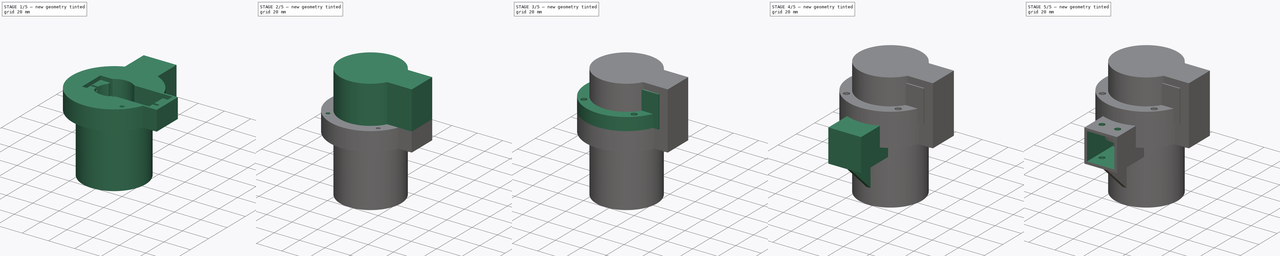
[diagram: build sequence overview — one tinted view per stage of 5, left to right]
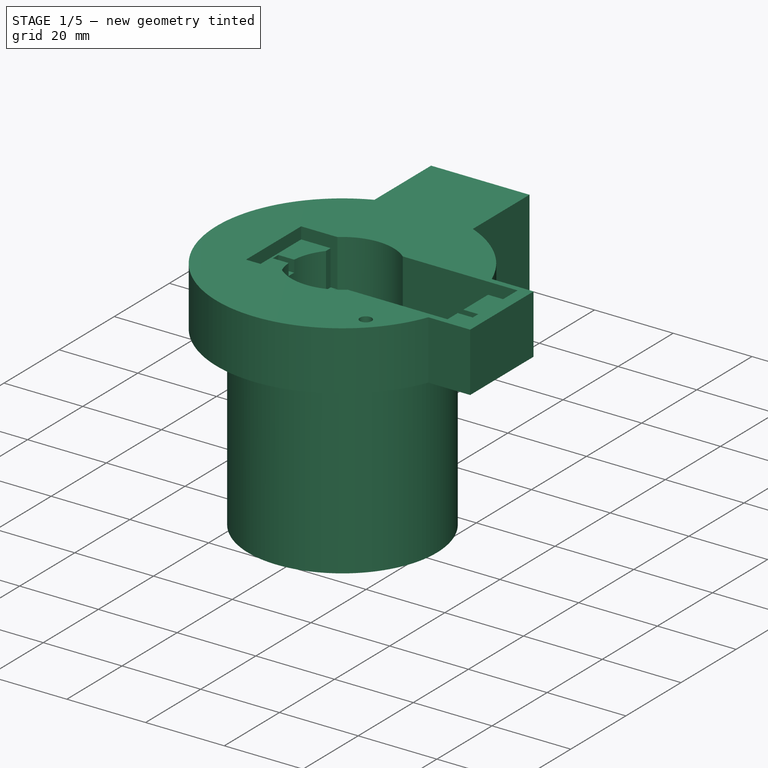
[diagram: stage 1 of 5 — iso view after this stage's code; geometry added in this stage tinted green]
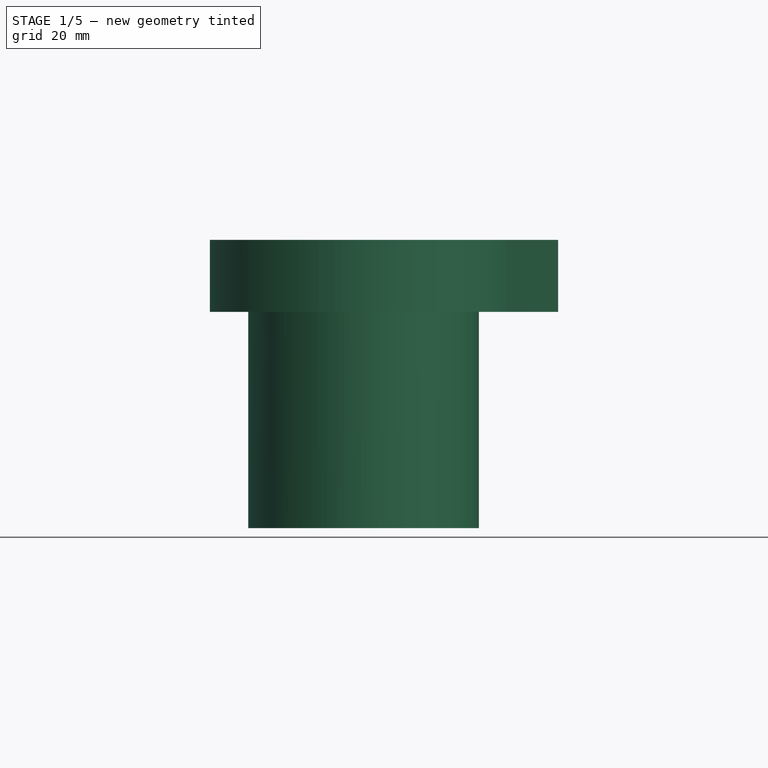
[diagram: stage 1 of 5 — front view after this stage's code; geometry added in this stage tinted green]
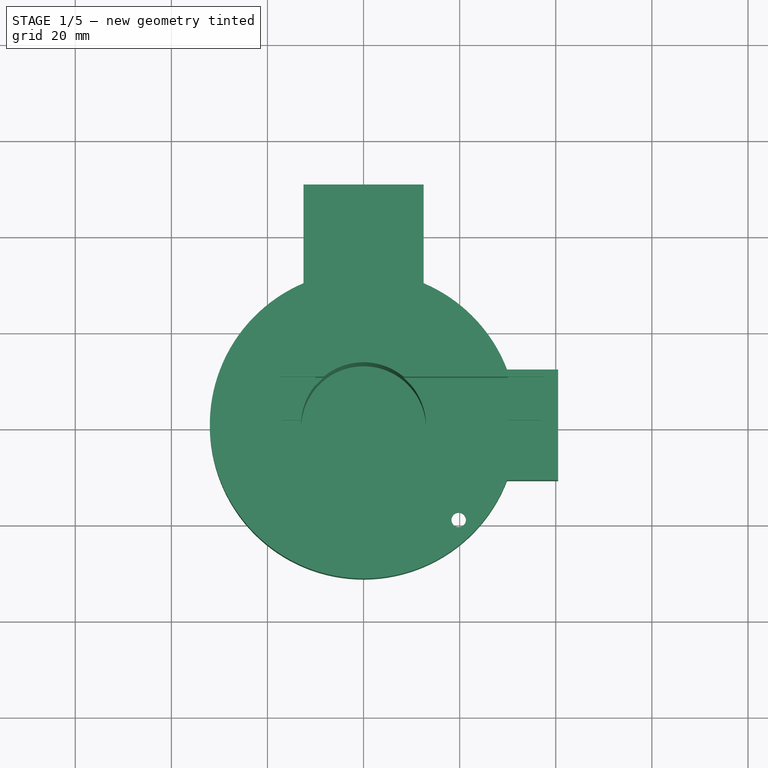
[diagram: stage 1 of 5 — top view after this stage's code; geometry added in this stage tinted green]
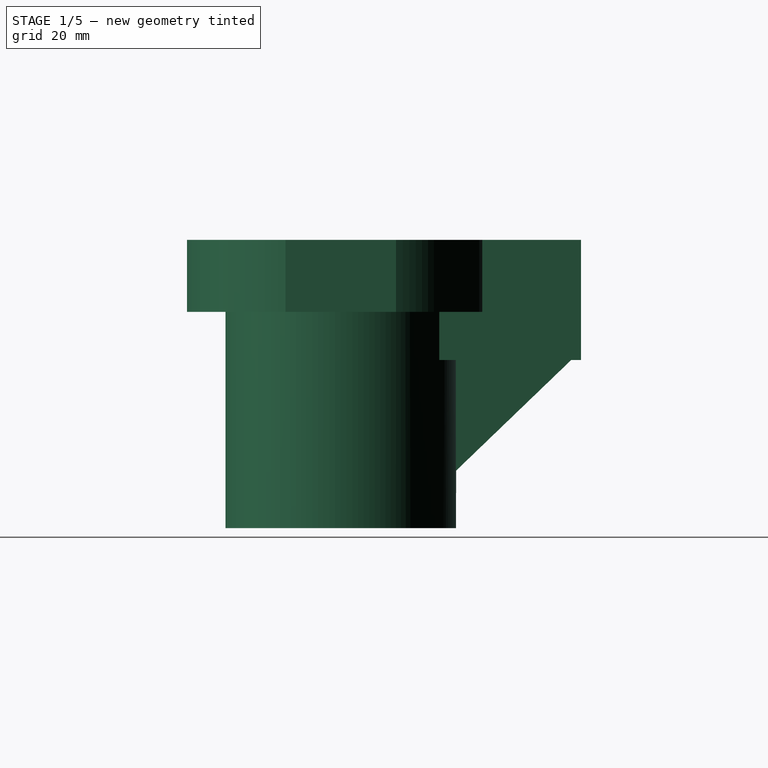
[diagram: stage 1 of 5 — right view after this stage's code; geometry added in this stage tinted green]
FCSTD DOCUMENT  (FreeCAD 0.19R24367 (Git))
Label: SteeringKnuckle
License: All rights reserved
LicenseURL: http://en.wikipedia.org/wiki/All_rights_reserved
objects: Sketcher::SketchObject×47, PartDesign::Pocket×30, PartDesign::Pad×15, PartDesign::CoordinateSystem×13, PartDesign::Body×4, App::Part×4, PartDesign::PolarPattern×3, PartDesign::Hole×2
note: 161 computed .brp shape members not serialized (recipe doc carries the construction recipe); baked Part::Feature solids carry a one-line shape summary decoded from their .brp

FEATURE [Sketcher::SketchObject] Sketch
  FullyConstrained = true
  MapMode = 5
  Support = -> [XY_Plane]
  sketch-geometry (4):
    g0: LineSegment StartX=-20.5 StartY=11.5 StartZ=0 EndX=40.5 EndY=11.5 EndZ=0
    g1: LineSegment StartX=40.5 StartY=11.5 StartZ=0 EndX=40.5 EndY=-11.5 EndZ=0
    g2: LineSegment StartX=40.5 StartY=-11.5 StartZ=0 EndX=-20.5 EndY=-11.5 EndZ=0
    g3: LineSegment StartX=-20.5 StartY=-11.5 StartZ=0 EndX=-20.5 EndY=11.5 EndZ=0
  constraints (11):
    c: Coincident(g0,g1)
    c: Coincident(g1,g2)
    c: Coincident(g2,g3)
    c: Coincident(g3,g0)
    c: Horizontal(g0)
    c: Horizontal(g2)
    c: Vertical(g1)
    c: Distance(g0) = 61
    c: Distance(g1) = 23
    c: Symmetric(g0,g2,g-1)
    c: DistanceX(g0,g-1) = 20.5
FEATURE [Sketcher::SketchObject] Sketch001
  FullyConstrained = true
  MapMode = 5
  Placement = pos=(0,0,0) rot=(1,0,0;3.14159rad)
  sketch-geometry (4):
    g0: LineSegment StartX=-10.5 StartY=10.2 StartZ=0 EndX=30.5 EndY=10.2 EndZ=0
    g1: LineSegment StartX=30.5 StartY=10.2 StartZ=0 EndX=30.5 EndY=-10.2 EndZ=0
    g2: LineSegment StartX=30.5 StartY=-10.2 StartZ=0 EndX=-10.5 EndY=-10.2 EndZ=0
    g3: LineSegment StartX=-10.5 StartY=-10.2 StartZ=0 EndX=-10.5 EndY=10.2 EndZ=0
  constraints (11):
    c: Coincident(g0,g1)
    c: Coincident(g1,g2)
    c: Coincident(g2,g3)
    c: Coincident(g3,g0)
    c: Horizontal(g0)
    c: Horizontal(g2)
    c: Vertical(g1)
    c: Distance(g0) = 41
    c: Distance(g1) = 20.4
    c: Symmetric(g0,g2,g-1)
    c: DistanceX(g0,g-1) = 10.5
FEATURE [Sketcher::SketchObject] Sketch002
  FullyConstrained = false
  MapMode = 5
  Placement = pos=(0,0,0) rot=(1,0,0;3.14159rad)
  sketch-geometry (4):
    g0: LineSegment StartX=-14.5 StartY=4 StartZ=0 EndX=-10.5 EndY=4 EndZ=0
    g1: LineSegment StartX=-10.5 StartY=4 StartZ=0 EndX=-10.5 EndY=-4 EndZ=0
    g2: LineSegment StartX=-10.5 StartY=-4 StartZ=0 EndX=-14.5 EndY=-4 EndZ=0
    g3: LineSegment StartX=-14.5 StartY=-4 StartZ=0 EndX=-14.5 EndY=4 EndZ=0
  constraints (10):
    c: Coincident(g0,g1)
    c: Coincident(g1,g2)
    c: Coincident(g2,g3)
    c: Coincident(g3,g0)
    c: Horizontal(g0)
    c: Horizontal(g2)
    c: Vertical(g1)
    c: Distance(g0) = 4
    c: Distance(g3) = 8
    c: Symmetric(g0,g2,g-1)
FEATURE [Sketcher::SketchObject] Sketch004
  FullyConstrained = true
  MapMode = 5
  Support = -> [XY_Plane001]
  sketch-geometry (4):
    g0: LineSegment StartX=-20.5 StartY=11.5 StartZ=0 EndX=40.5 EndY=11.5 EndZ=0
    g1: LineSegment StartX=40.5 StartY=11.5 StartZ=0 EndX=40.5 EndY=-11.5 EndZ=0
    g2: LineSegment StartX=40.5 StartY=-11.5 StartZ=0 EndX=-20.5 EndY=-11.5 EndZ=0
    g3: LineSegment StartX=-20.5 StartY=-11.5 StartZ=0 EndX=-20.5 EndY=11.5 EndZ=0
  constraints (11):
    c: Coincident(g0,g1)
    c: Coincident(g1,g2)
    c: Coincident(g2,g3)
    c: Coincident(g3,g0)
    c: Horizontal(g0)
    c: Horizontal(g2)
    c: Vertical(g1)
    c: Distance(g0) = 61
    c: Distance(g1) = 23
    c: Symmetric(g0,g2,g-1)
    c: DistanceX(g0,g-1) = 20.5
FEATURE [Sketcher::SketchObject] Sketch005
  FullyConstrained = true
  MapMode = 5
  sketch-geometry (4):
    g0: LineSegment StartX=-17.5 StartY=10 StartZ=0 EndX=37.5 EndY=10 EndZ=0
    g1: LineSegment StartX=37.5 StartY=10 StartZ=0 EndX=37.5 EndY=-10 EndZ=0
    g2: LineSegment StartX=37.5 StartY=-10 StartZ=0 EndX=-17.5 EndY=-10 EndZ=0
    g3: LineSegment StartX=-17.5 StartY=-10 StartZ=0 EndX=-17.5 EndY=10 EndZ=0
  constraints (11):
    c: Coincident(g0,g1)
    c: Coincident(g1,g2)
    c: Coincident(g2,g3)
    c: Coincident(g3,g0)
    c: Horizontal(g0)
    c: Horizontal(g2)
    c: Vertical(g1)
    c: Distance(g1) = 20
    c: Distance(g0) = 55
    c: Symmetric(g0,g2,g-1)
    c: DistanceX(g0,g-1) = 17.5
FEATURE [Sketcher::SketchObject] Sketch006
  FullyConstrained = true
  MapMode = 5
  Placement = pos=(0,0,-3) rot=(0,0,1;0rad)
  sketch-geometry (4):
    g0: LineSegment StartX=-10 StartY=10 StartZ=0 EndX=30 EndY=10 EndZ=0
    g1: LineSegment StartX=30 StartY=10 StartZ=0 EndX=30 EndY=-10 EndZ=0
    g2: LineSegment StartX=30 StartY=-10 StartZ=0 EndX=-10 EndY=-10 EndZ=0
    g3: LineSegment StartX=-10 StartY=-10 StartZ=0 EndX=-10 EndY=10 EndZ=0
  constraints (11):
    c: Coincident(g0,g1)
    c: Coincident(g1,g2)
    c: Coincident(g2,g3)
    c: Coincident(g3,g0)
    c: Horizontal(g0)
    c: Horizontal(g2)
    c: Vertical(g1)
    c: Distance(g1) = 20
    c: Distance(g0) = 40
    c: Symmetric(g0,g2,g-1)
    c: DistanceX(g0,g-1) = 10
FEATURE [Sketcher::SketchObject] Sketch008
  FullyConstrained = true
  MapMode = 5
  Placement = pos=(0,0,-3) rot=(0,0,1;0rad)
  sketch-geometry (8):
    g0: LineSegment StartX=-17 StartY=1 StartZ=0 EndX=-10 EndY=1 EndZ=0
    g1: LineSegment StartX=-10 StartY=1 StartZ=0 EndX=-10 EndY=-1 EndZ=0
    g2: LineSegment StartX=-10 StartY=-1 StartZ=0 EndX=-17 EndY=-1 EndZ=0
    g3: LineSegment StartX=-17 StartY=-1 StartZ=0 EndX=-17 EndY=1 EndZ=0
    g4: LineSegment StartX=30 StartY=1 StartZ=0 EndX=37 EndY=1 EndZ=0
    g5: LineSegment StartX=37 StartY=1 StartZ=0 EndX=37 EndY=-1 EndZ=0
    g6: LineSegment StartX=37 StartY=-1 StartZ=0 EndX=30 EndY=-1 EndZ=0
    g7: LineSegment StartX=30 StartY=-1 StartZ=0 EndX=30 EndY=1 EndZ=0
  constraints (22):
    c: Coincident(g0,g1)
    c: Coincident(g1,g2)
    c: Coincident(g2,g3)
    c: Coincident(g3,g0)
    c: Horizontal(g0)
    c: Horizontal(g2)
    c: Vertical(g1)
    c: Distance(g1) = 2
    c: Distance(g0) = 7
    c: Symmetric(g0,g2,g-1)
    c: DistanceX(g0,g-1) = 10
    c: Coincident(g4,g5)
    c: Coincident(g5,g6)
    c: Coincident(g6,g7)
    c: Coincident(g7,g4)
    c: Horizontal(g4)
    c: Horizontal(g6)
    c: Vertical(g7)
    c: Distance(g7) = 2
    c: Distance(g4) = 7
    c: Symmetric(g4,g5,g-1)
    c: DistanceX(g-1,g4) = 30
FEATURE [Sketcher::SketchObject] Sketch009
  FullyConstrained = true
  MapMode = 5
  sketch-geometry (1):
    g0: Circle CenterX=0 CenterY=0 CenterZ=0 NormalX=0 NormalY=0 NormalZ=1 AngleXU=0 Radius=24
  constraints (2):
    c: Coincident(g0,g-1)
    c: Diameter(g0) = 48
FEATURE [PartDesign::Pad] Pad002
  Direction = (1,1,1)
  Length = 60
  Length2 = 100
  Profile = -> Sketch009
  Reversed = true
  Type = 0
FEATURE [PartDesign::Pad] Pad003
  BaseFeature = -> Pad002
  Direction = (1,1,1)
  Length = 15
  Length2 = 100
  Profile = -> Sketch004
  Reversed = true
  Type = 0
FEATURE [Sketcher::SketchObject] Sketch036
  FullyConstrained = true
  MapMode = 5
  sketch-geometry (4):
    g0: LineSegment StartX=-12.5 StartY=50 StartZ=0 EndX=12.5 EndY=50 EndZ=0
    g1: LineSegment StartX=12.5 StartY=50 StartZ=0 EndX=12.5 EndY=10 EndZ=0
    g2: LineSegment StartX=12.5 StartY=10 StartZ=0 EndX=-12.5 EndY=10 EndZ=0
    g3: LineSegment StartX=-12.5 StartY=10 StartZ=0 EndX=-12.5 EndY=50 EndZ=0
  constraints (11):
    c: Coincident(g0,g1)
    c: Coincident(g1,g2)
    c: Coincident(g2,g3)
    c: Coincident(g3,g0)
    c: Horizontal(g0)
    c: Vertical(g1)
    c: Vertical(g3)
    c: Distance(g0) = 25
    c: Distance(g1) = 40
    c: Symmetric(g2,g1,g-2)
    c: DistanceY(g-1,g2) = 10
FEATURE [PartDesign::Pad] Pad015
  BaseFeature = -> Pad003
  Direction = (1,1,1)
  Length = 25
  Length2 = 100
  Profile = -> Sketch036
  Reversed = true
  Type = 0
FEATURE [Sketcher::SketchObject] Sketch038
  FullyConstrained = true
  MapMode = 5
  sketch-geometry (1):
    g0: Circle CenterX=0 CenterY=0 CenterZ=0 NormalX=0 NormalY=0 NormalZ=1 AngleXU=0 Radius=13
  constraints (2):
    c: Coincident(g0,g-1)
    c: Diameter(g0) = 26
FEATURE [Sketcher::SketchObject] Sketch043
  FullyConstrained = true
  MapMode = 5
  Placement = pos=(0,0,0) rot=(0.57735,0.57735,0.57735;2.0944rad)
  Support = -> [YZ_Plane001]
  sketch-geometry (3):
    g0: LineSegment StartX=23 StartY=-24 StartZ=0 EndX=49 EndY=-24 EndZ=0
    g1: LineSegment StartX=23 StartY=-24 StartZ=0 EndX=23 EndY=-49 EndZ=0
    g2: LineSegment StartX=49 StartY=-24 StartZ=0 EndX=23 EndY=-49 EndZ=0
  constraints (9):
    c: Horizontal(g0)
    c: Coincident(g1,g0)
    c: Vertical(g1)
    c: Coincident(g2,g0)
    c: Coincident(g2,g1)
    c: Distance(g0) = 26
    c: Distance(g1) = 25
    c: DistanceX(g0) = 23
    c: DistanceY(g0) = -24
FEATURE [PartDesign::Pad] Pad016
  BaseFeature = -> Pad015
  Direction = (1,1,1)
  Length = 3
  Length2 = 100
  Midplane = true
  Profile = -> Sketch043
  Type = 0
FEATURE [Sketcher::SketchObject] Sketch047
  FullyConstrained = true
  MapMode = 5
  Support = -> [XY_Plane001]
  sketch-geometry (1):
    g0: Circle CenterX=0 CenterY=0 CenterZ=0 NormalX=0 NormalY=0 NormalZ=1 AngleXU=0 Radius=32
  constraints (2):
    c: Coincident(g0,g-1)
    c: Diameter(g0) = 64
FEATURE [PartDesign::Pad] Pad017
  BaseFeature = -> Pad016
  Direction = (1,1,1)
  Length = 15
  Length2 = 100
  Profile = -> Sketch047
  Reversed = true
  Type = 0
FEATURE [PartDesign::Pocket] Pocket030
  BaseFeature = -> Pad017
  Length = 3
  Length2 = 100
  Profile = -> Sketch005
  Type = 0
FEATURE [PartDesign::Pocket] Pocket031
  BaseFeature = -> Pocket030
  Length = 3
  Length2 = 100
  Profile = -> Sketch008
  Type = 0
FEATURE [PartDesign::Pocket] Pocket032
  BaseFeature = -> Pocket031
  Length = 48
  Length2 = 100
  Profile = -> Sketch038
  Type = 0
FEATURE [PartDesign::Pocket] Pocket033
  BaseFeature = -> Pocket032
  Length = 9
  Length2 = 100
  Profile = -> Sketch006
  Type = 0
FEATURE [Sketcher::SketchObject] Sketch053
  FullyConstrained = true
  MapMode = 5
  Placement = pos=(0,0,-15) rot=(1,0,0;3.14159rad)
  sketch-geometry (2):
    g0: LineSegment StartX=0 StartY=0 StartZ=0 EndX=19.799 EndY=19.799 EndZ=0
    g1: Circle CenterX=19.799 CenterY=19.799 CenterZ=0 NormalX=0 NormalY=0 NormalZ=1 AngleXU=0 Radius=3
  constraints (5):
    c: Coincident(g0,g-1)
    c: Distance(g0) = 28
    c: Angle(g-1,g0) = 0.785398
    c: Coincident(g1,g0)
    c: Diameter(g1) = 6
FEATURE [PartDesign::Hole] Hole
  BaseFeature = -> Pocket033
  Depth = 25
  DepthType = 0
  Diameter = 3
  DrillForDepth = false
  DrillPoint = 1
  DrillPointAngle = 118
  HoleCutCountersinkAngle = 90
  HoleCutCustomValues = false
  HoleCutDepth = 12
  HoleCutDiameter = 6
  HoleCutType = 1
  ModelActualThread = false
  Profile = -> Sketch053
  Tapered = false
  TaperedAngle = 90
  ThreadAngle = 0
  ThreadClass = 0
  ThreadCutOffInner = 0
  ThreadCutOffOuter = 0
  ThreadDirection = 0
  ThreadFit = 0
  ThreadPitch = 0
  ThreadSize = 0
  ThreadType = 0
  Threaded = false
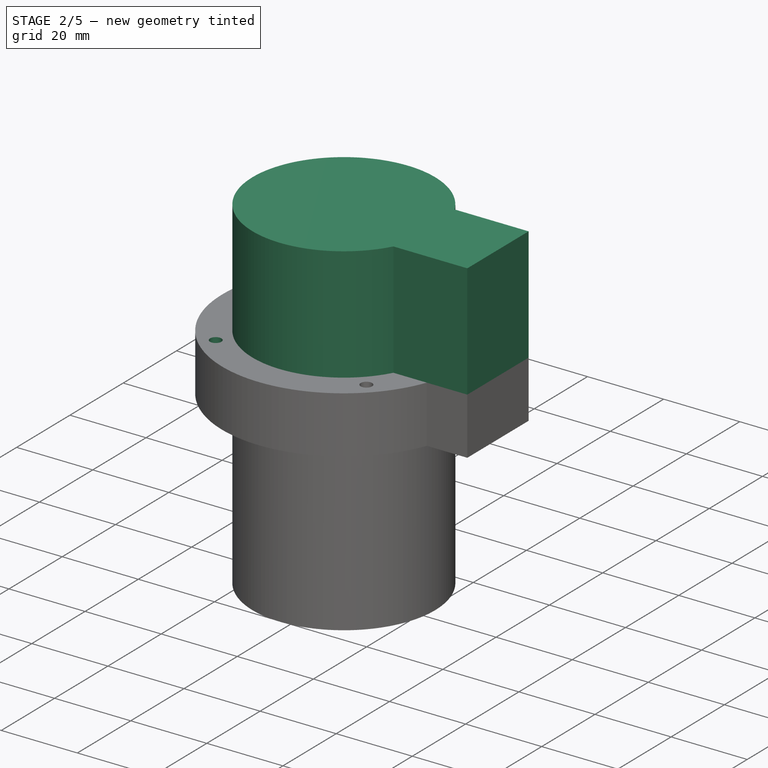
[diagram: stage 2 of 5 — iso view after this stage's code; geometry added in this stage tinted green]
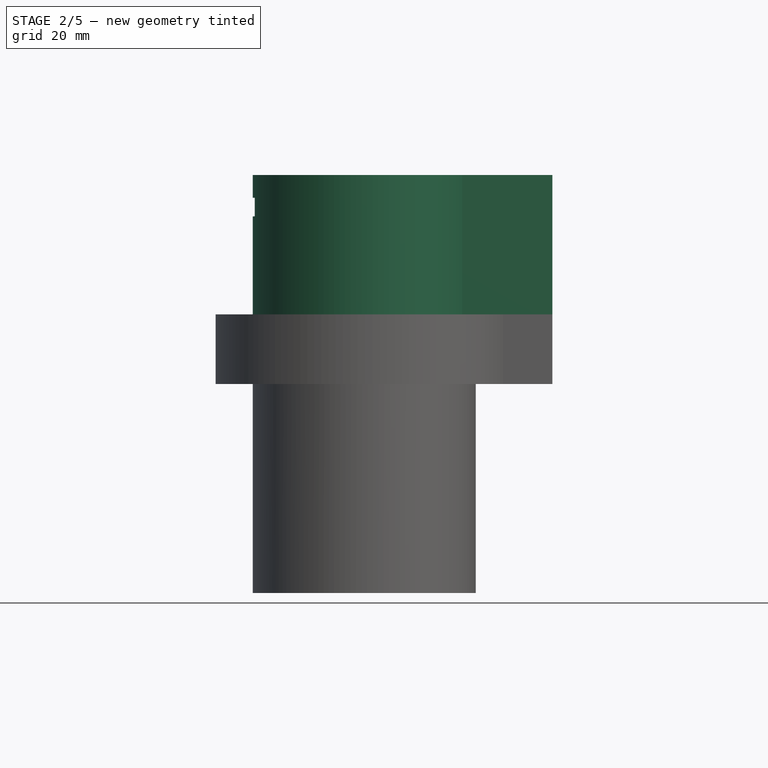
[diagram: stage 2 of 5 — front view after this stage's code; geometry added in this stage tinted green]
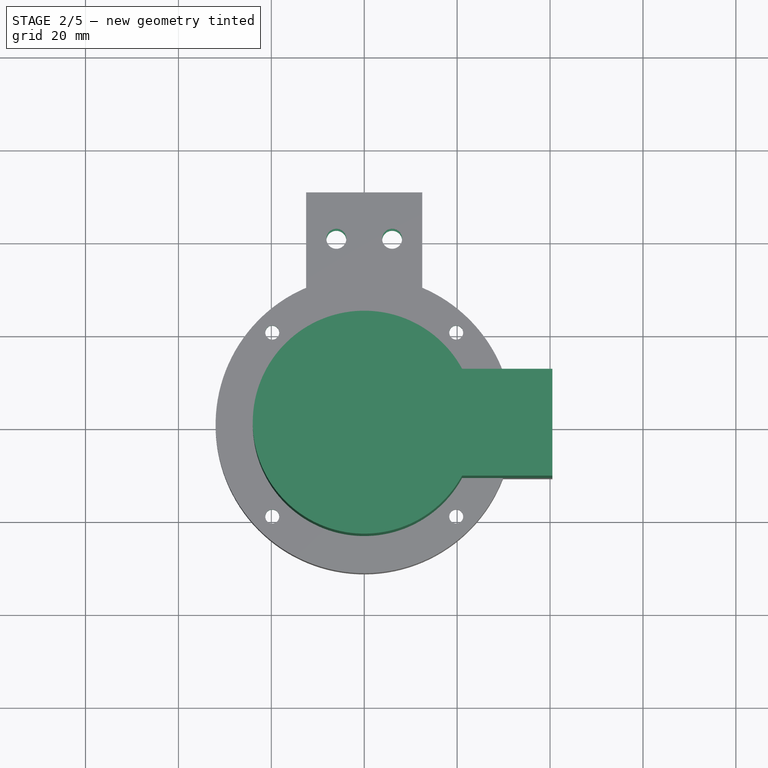
[diagram: stage 2 of 5 — top view after this stage's code; geometry added in this stage tinted green]
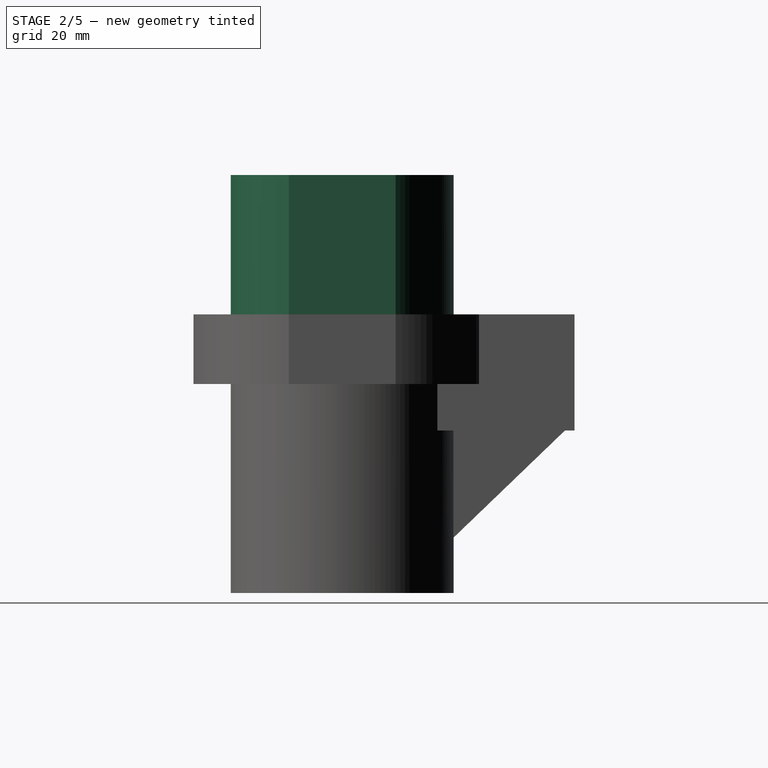
[diagram: stage 2 of 5 — right view after this stage's code; geometry added in this stage tinted green]
FEATURE [Sketcher::SketchObject] Sketch015
  FullyConstrained = true
  MapMode = 5
  Placement = pos=(0,0,0) rot=(1,0,0;3.14159rad)
  sketch-geometry (1):
    g0: Circle CenterX=0 CenterY=0 CenterZ=0 NormalX=0 NormalY=0 NormalZ=1 AngleXU=0 Radius=24
  constraints (2):
    c: Coincident(g0,g-1)
    c: Diameter(g0) = 48
FEATURE [PartDesign::Pad] Pad
  Direction = (1,1,1)
  Length = 30
  Length2 = 100
  Profile = -> Sketch
  Refine = true
  Type = 0
FEATURE [PartDesign::Pad] Pad006
  BaseFeature = -> Pad
  Direction = (1,1,1)
  Length = 30
  Length2 = 100
  Profile = -> Sketch015
  Reversed = true
  Type = 0
FEATURE [Sketcher::SketchObject] Sketch031
  FullyConstrained = true
  MapMode = 5
  Placement = pos=(40,0,0) rot=(0.57735,0.57735,0.57735;2.0944rad)
  sketch-geometry (4):
    g0: LineSegment StartX=-10.5 StartY=23 StartZ=0 EndX=10.5 EndY=23 EndZ=0
    g1: LineSegment StartX=10.5 StartY=23 StartZ=0 EndX=10.5 EndY=2 EndZ=0
    g2: LineSegment StartX=10.5 StartY=2 StartZ=0 EndX=-10.5 EndY=2 EndZ=0
    g3: LineSegment StartX=-10.5 StartY=2 StartZ=0 EndX=-10.5 EndY=23 EndZ=0
  constraints (11):
    c: Coincident(g0,g1)
    c: Coincident(g1,g2)
    c: Coincident(g2,g3)
    c: Coincident(g3,g0)
    c: Horizontal(g0)
    c: Vertical(g1)
    c: Vertical(g3)
    c: Distance(g0) = 21
    c: Equal(g0,g1)
    c: Symmetric(g2,g1,g-2)
    c: DistanceY(g-1,g1) = 2
FEATURE [PartDesign::Pocket] Pocket020
  BaseFeature = -> Pad006
  Length = 5
  Length2 = 100
  Profile = -> Sketch019
  Type = 1
FEATURE [PartDesign::PolarPattern] PolarPattern
  Angle = 360
  Axis = -> Z_Axis001
  BaseFeature = -> Hole
  Occurrences = 4
  Originals = -> [Hole]
FEATURE [PartDesign::Body] Body  label="BodyTop"
  Group = -> [Sketch,Sketch001,Sketch002,Sketch015,Pad,Pad006,Sketch019,Pocket020,Sketch054,Pad018,Pocket,Pocket039,Sketch055,Pocket040,PolarPattern001]
  Origin = -> Origin
  Tip = -> PolarPattern001
FEATURE [Sketcher::SketchObject] Sketch056
  FullyConstrained = true
  MapMode = 5
  Placement = pos=(0,0,-48) rot=(0,0,1;0rad)
  Support = -> [PolarPattern]
  sketch-geometry (1):
    g0: Circle CenterX=0 CenterY=0 CenterZ=0 NormalX=0 NormalY=0 NormalZ=1 AngleXU=0 Radius=9.75
  constraints (2):
    c: Coincident(g0,g-1)
    c: Diameter(g0) = 19.5
FEATURE [PartDesign::Pocket] Pocket041
  BaseFeature = -> PolarPattern
  Length = 6
  Length2 = 100
  Profile = -> Sketch056
  Type = 0
FEATURE [Sketcher::SketchObject] Sketch057
  FullyConstrained = true
  MapMode = 5
  Placement = pos=(0,0,-54) rot=(0,0,1;0rad)
  Support = -> [Pocket041]
  sketch-geometry (1):
    g0: Circle CenterX=0 CenterY=0 CenterZ=0 NormalX=0 NormalY=0 NormalZ=1 AngleXU=0 Radius=4.5
  constraints (2):
    c: Coincident(g0,g-1)
    c: Diameter(g0) = 9
FEATURE [PartDesign::Pocket] Pocket042
  BaseFeature = -> Pocket041
  Length = 5
  Length2 = 100
  Profile = -> Sketch057
  Type = 1
FEATURE [Sketcher::SketchObject] Sketch058
  FullyConstrained = true
  MapMode = 5
  Placement = pos=(0,0,-60) rot=(1,0,0;3.14159rad)
  Support = -> [Pocket042]
  sketch-geometry (1):
    g0: Circle CenterX=0 CenterY=0 CenterZ=0 NormalX=0 NormalY=0 NormalZ=1 AngleXU=0 Radius=22
  constraints (2):
    c: Coincident(g0,g-1)
    c: Diameter(g0) = 44
FEATURE [PartDesign::Pocket] Pocket043
  BaseFeature = -> Pocket042
  Length = 2
  Length2 = 100
  Profile = -> Sketch058
  Type = 0
FEATURE [Sketcher::SketchObject] Sketch059
  FullyConstrained = true
  MapMode = 5
  Placement = pos=(0,0,-58) rot=(1,0,0;3.14159rad)
  Support = -> [Pocket043]
  sketch-geometry (1):
    g0: Circle CenterX=0 CenterY=0 CenterZ=0 NormalX=0 NormalY=0 NormalZ=1 AngleXU=0 Radius=6.25
  constraints (2):
    c: Coincident(g0,g-1)
    c: Diameter(g0) = 12.5
FEATURE [PartDesign::Pocket] Pocket044
  BaseFeature = -> Pocket043
  Length = 2
  Length2 = 100
  Profile = -> Sketch059
  Type = 0
FEATURE [Sketcher::SketchObject] Sketch060
  FullyConstrained = true
  MapMode = 5
  Placement = pos=(0,50,0) rot=(0,0.707107,0.707107;3.14159rad)
  Support = -> [Pocket044]
  sketch-geometry (4):
    g0: LineSegment StartX=-10.5 StartY=-2 StartZ=0 EndX=10.5 EndY=-2 EndZ=0
    g1: LineSegment StartX=10.5 StartY=-2 StartZ=0 EndX=10.5 EndY=-23 EndZ=0
    g2: LineSegment StartX=10.5 StartY=-23 StartZ=0 EndX=-10.5 EndY=-23 EndZ=0
    g3: LineSegment StartX=-10.5 StartY=-23 StartZ=0 EndX=-10.5 EndY=-2 EndZ=0
  constraints (11):
    c: Coincident(g0,g1)
    c: Coincident(g1,g2)
    c: Coincident(g2,g3)
    c: Coincident(g3,g0)
    c: Horizontal(g0)
    c: Vertical(g1)
    c: Vertical(g3)
    c: Distance(g0) = 21
    c: Equal(g0,g1)
    c: Symmetric(g2,g1,g-2)
    c: DistanceY(g0,g-1) = 2
FEATURE [PartDesign::Pocket] Pocket045
  BaseFeature = -> Pocket044
  Length = 36
  Length2 = 100
  Profile = -> Sketch060
  Type = 0
FEATURE [Sketcher::SketchObject] Sketch065
  FullyConstrained = true
  MapMode = 5
  Support = -> [Pocket045]
  sketch-geometry (3):
    g0: LineSegment StartX=-6 StartY=40 StartZ=0 EndX=6 EndY=40 EndZ=0
    g1: Circle CenterX=-6 CenterY=40 CenterZ=0 NormalX=0 NormalY=0 NormalZ=1 AngleXU=0 Radius=2.15
    g2: Circle CenterX=6 CenterY=40 CenterZ=0 NormalX=0 NormalY=0 NormalZ=1 AngleXU=0 Radius=2.15
  constraints (7):
    c: Symmetric(g0,g0,g-2)
    c: Distance(g0) = 12
    c: DistanceY(g-1,g0) = 40
    c: Coincident(g1,g0)
    c: Coincident(g2,g0)
    c: Diameter(g1) = 4.3
    c: Diameter(g2) = 4.3
FEATURE [PartDesign::Pocket] Pocket051
  BaseFeature = -> Pocket045
  Length = 5
  Length2 = 100
  Profile = -> Sketch065
  Refine = true
  Type = 1
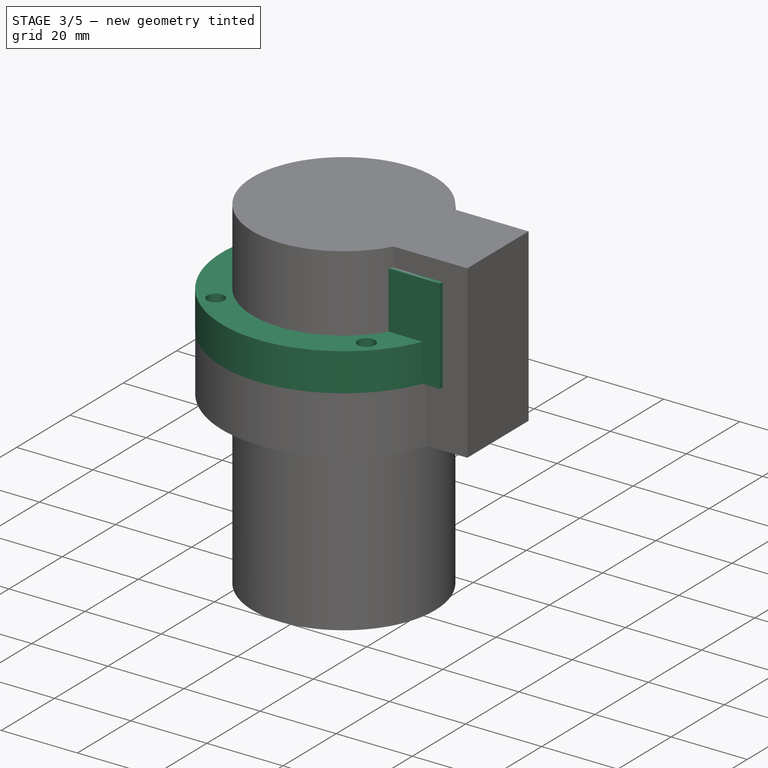
[diagram: stage 3 of 5 — iso view after this stage's code; geometry added in this stage tinted green]
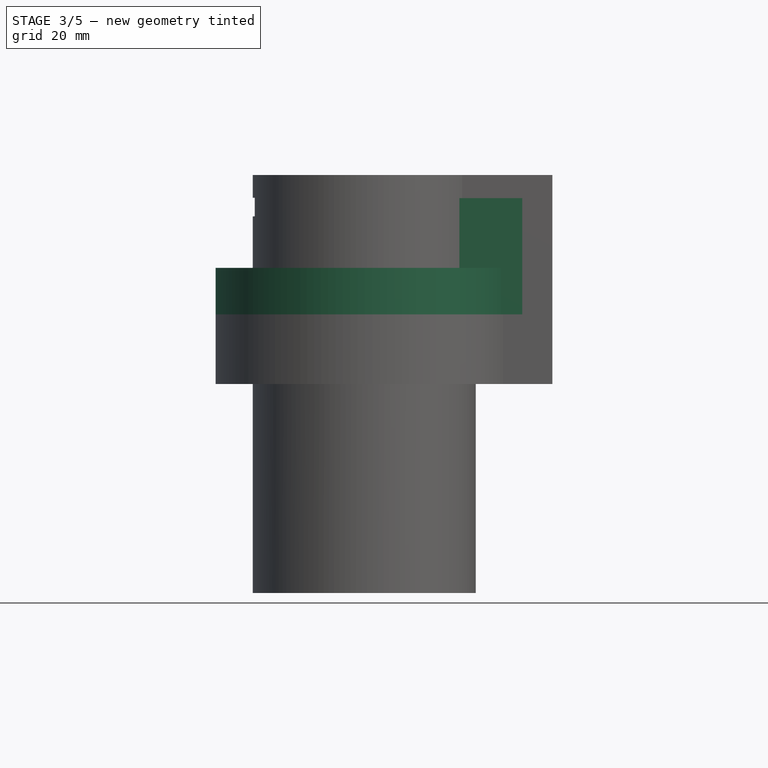
[diagram: stage 3 of 5 — front view after this stage's code; geometry added in this stage tinted green]
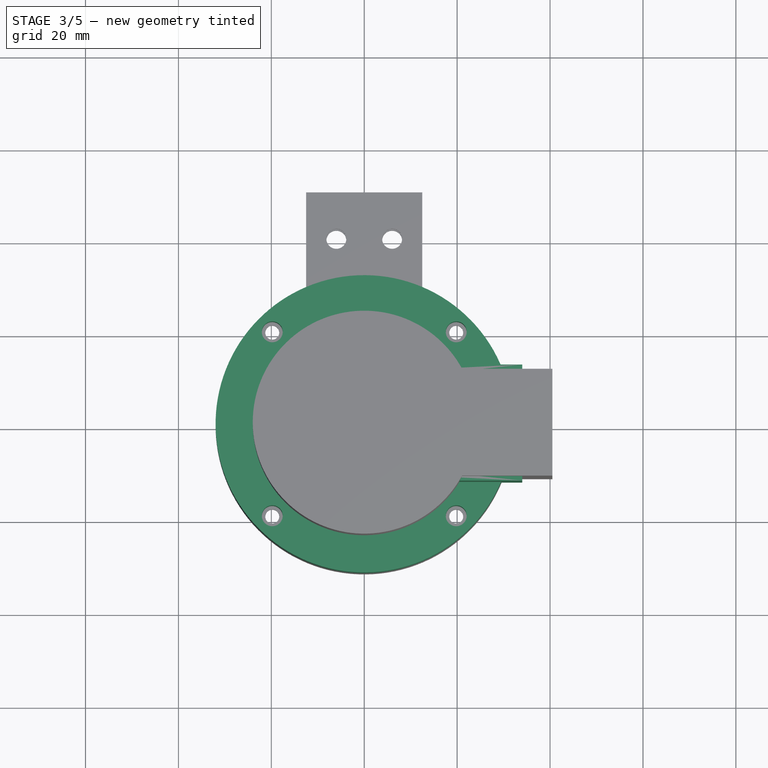
[diagram: stage 3 of 5 — top view after this stage's code; geometry added in this stage tinted green]
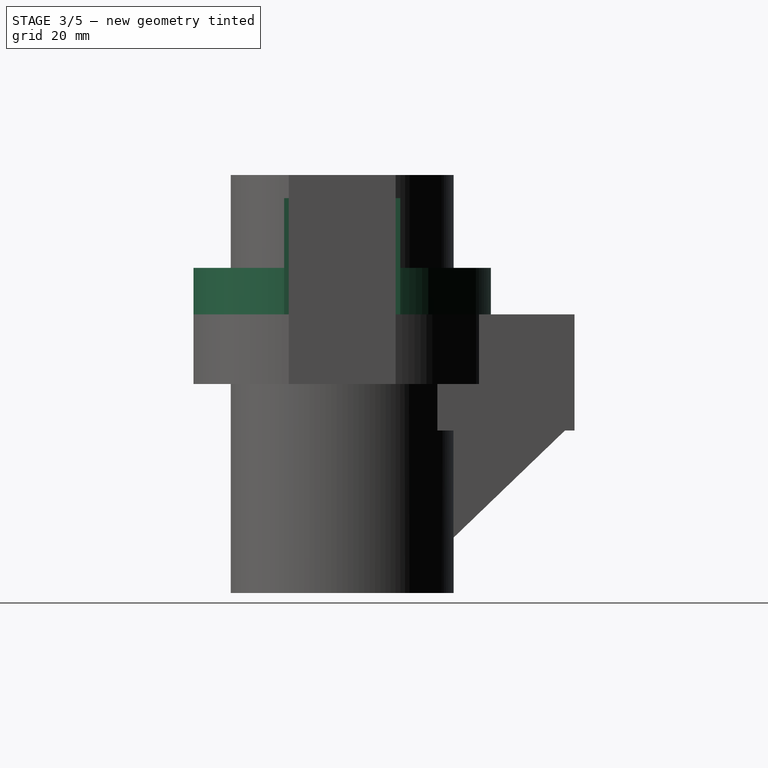
[diagram: stage 3 of 5 — right view after this stage's code; geometry added in this stage tinted green]
FEATURE [Sketcher::SketchObject] Sketch019
  FullyConstrained = true
  MapMode = 5
  Placement = pos=(0,0,0) rot=(0.57735,0.57735,0.57735;2.0944rad)
  Support = -> [YZ_Plane]
  sketch-geometry (4):
    g0: LineSegment StartX=-4.5 StartY=25.0833 StartZ=0 EndX=4.5 EndY=25.0833 EndZ=0
    g1: LineSegment StartX=4.5 StartY=25.0833 StartZ=0 EndX=4.5 EndY=21.0833 EndZ=0
    g2: LineSegment StartX=4.5 StartY=21.0833 StartZ=0 EndX=-4.5 EndY=21.0833 EndZ=0
    g3: LineSegment StartX=-4.5 StartY=21.0833 StartZ=0 EndX=-4.5 EndY=25.0833 EndZ=0
  constraints (11):
    c: Coincident(g0,g1)
    c: Coincident(g1,g2)
    c: Coincident(g2,g3)
    c: Coincident(g3,g0)
    c: Horizontal(g2)
    c: Vertical(g1)
    c: Vertical(g3)
    c: Distance(g0) = 9
    c: Symmetric(g0,g0,g-2)
    c: Distance(g1) = 4
    c: DistanceY(g2) = 21.0833
FEATURE [Sketcher::SketchObject] Sketch027
  FullyConstrained = true
  MapMode = 5
  Support = -> [XY_Plane002]
  sketch-geometry (1):
    g0: Circle CenterX=0 CenterY=0 CenterZ=0 NormalX=0 NormalY=0 NormalZ=1 AngleXU=0 Radius=21
  constraints (2):
    c: Coincident(g0,g-1)
    c: Diameter(g0) = 42
FEATURE [PartDesign::Pad] Pad011
  Direction = (1,1,1)
  Length = 30
  Length2 = 100
  Profile = -> Sketch027
  Type = 0
FEATURE [Sketcher::SketchObject] Sketch029
  FullyConstrained = true
  MapMode = 5
  Placement = pos=(0,0,0) rot=(1,0,0;3.14159rad)
  Support = -> [Pad011]
  sketch-geometry (4):
    g0: LineSegment StartX=0 StartY=12.5 StartZ=0 EndX=34 EndY=12.5 EndZ=0
    g1: LineSegment StartX=34 StartY=12.5 StartZ=0 EndX=34 EndY=-12.5 EndZ=0
    g2: LineSegment StartX=34 StartY=-12.5 StartZ=0 EndX=0 EndY=-12.5 EndZ=0
    g3: LineSegment StartX=0 StartY=-12.5 StartZ=0 EndX=0 EndY=12.5 EndZ=0
  constraints (11):
    c: Coincident(g0,g1)
    c: Coincident(g1,g2)
    c: Coincident(g2,g3)
    c: Coincident(g3,g0)
    c: Horizontal(g0)
    c: Horizontal(g2)
    c: Vertical(g1)
    c: PointOnObject(g0,g-2)
    c: Distance(g3) = 25
    c: Distance(g0) = 34
    c: Symmetric(g0,g2,g-1)
FEATURE [PartDesign::Pad] Pad012
  BaseFeature = -> Pad011
  Direction = (1,1,1)
  Length = 25
  Length2 = 100
  Profile = -> Sketch029
  Reversed = true
  Type = 0
FEATURE [Sketcher::SketchObject] Sketch054
  FullyConstrained = true
  MapMode = 5
  Support = -> [XY_Plane]
  sketch-geometry (1):
    g0: Circle CenterX=0 CenterY=0 CenterZ=0 NormalX=0 NormalY=0 NormalZ=1 AngleXU=0 Radius=32
  constraints (2):
    c: Coincident(g0,g-1)
    c: Diameter(g0) = 64
FEATURE [PartDesign::Pad] Pad018
  BaseFeature = -> Pocket020
  Direction = (1,1,1)
  Length = 10
  Length2 = 100
  Profile = -> Sketch054
  Type = 0
FEATURE [PartDesign::Pocket] Pocket
  BaseFeature = -> Pad018
  Length = 29
  Length2 = 100
  Profile = -> Sketch001
  Type = 0
FEATURE [PartDesign::Pocket] Pocket039
  BaseFeature = -> Pocket
  Length = 28
  Length2 = 100
  Profile = -> Sketch002
  Type = 0
FEATURE [Sketcher::SketchObject] Sketch055
  FullyConstrained = true
  MapMode = 5
  Placement = pos=(0,0,0) rot=(1,0,0;3.14159rad)
  Support = -> [Pocket039]
  sketch-geometry (2):
    g0: LineSegment StartX=0 StartY=0 StartZ=0 EndX=19.799 EndY=19.799 EndZ=0
    g1: Circle CenterX=19.799 CenterY=19.799 CenterZ=0 NormalX=0 NormalY=0 NormalZ=1 AngleXU=0 Radius=2.25
  constraints (5):
    c: Coincident(g0,g-1)
    c: Distance(g0) = 28
    c: Angle(g-1,g0) = 0.785398
    c: Coincident(g1,g0)
    c: Diameter(g1) = 4.5
FEATURE [PartDesign::Pocket] Pocket040
  BaseFeature = -> Pocket039
  Length = 8
  Length2 = 100
  Profile = -> Sketch055
  Refine = true
  Type = 1
FEATURE [PartDesign::PolarPattern] PolarPattern001
  Angle = 360
  Axis = -> Z_Axis
  BaseFeature = -> Pocket040
  Occurrences = 4
  Originals = -> [Pocket040]
FEATURE [Sketcher::SketchObject] Sketch061
  FullyConstrained = true
  MapMode = 5
  Placement = pos=(0,0,0) rot=(1,0,0;3.14159rad)
  Support = -> [Pad012]
  sketch-geometry (1):
    g0: Circle CenterX=0 CenterY=0 CenterZ=0 NormalX=0 NormalY=0 NormalZ=1 AngleXU=0 Radius=6.15
  constraints (2):
    c: Coincident(g0,g-1)
    c: Diameter(g0) = 12.3
FEATURE [PartDesign::Pocket] Pocket046
  BaseFeature = -> Pad012
  Length = 20
  Length2 = 100
  Profile = -> Sketch061
  Type = 0
FEATURE [Sketcher::SketchObject] Sketch062
  FullyConstrained = true
  MapMode = 5
  Placement = pos=(0,0,30) rot=(0,0,1;0rad)
  Support = -> [Pocket046]
  sketch-geometry (1):
    g0: Circle CenterX=0 CenterY=0 CenterZ=0 NormalX=0 NormalY=0 NormalZ=1 AngleXU=0 Radius=3.15
  constraints (2):
    c: Coincident(g0,g-1)
    c: Diameter(g0) = 6.3
FEATURE [PartDesign::Pocket] Pocket047
  BaseFeature = -> Pocket046
  Length = 5
  Length2 = 100
  Profile = -> Sketch062
  Type = 1
FEATURE [PartDesign::Pocket] Pocket048
  BaseFeature = -> Pocket047
  Length = 32
  Length2 = 100
  Profile = -> Sketch031
  Type = 0
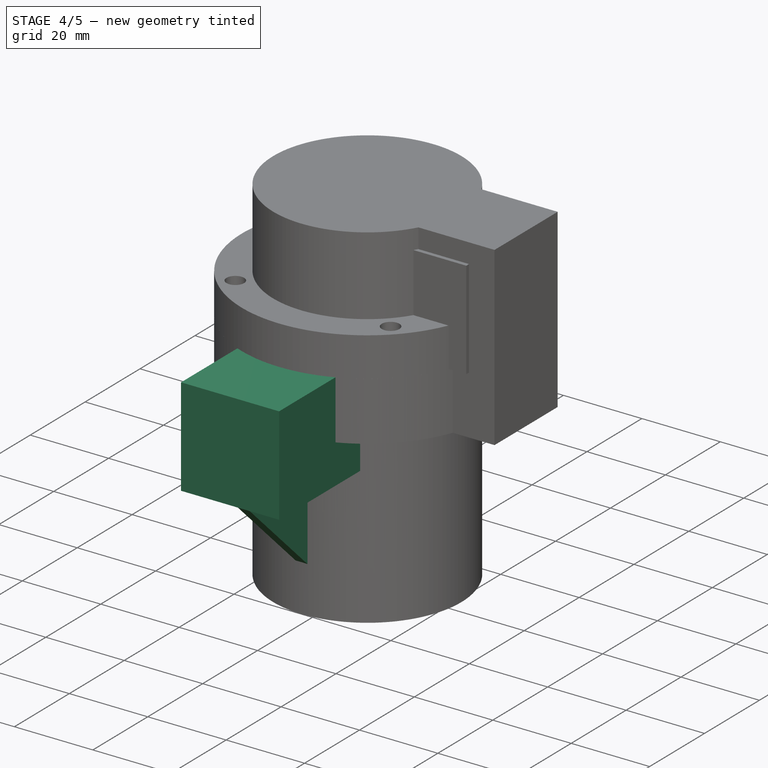
[diagram: stage 4 of 5 — iso view after this stage's code; geometry added in this stage tinted green]
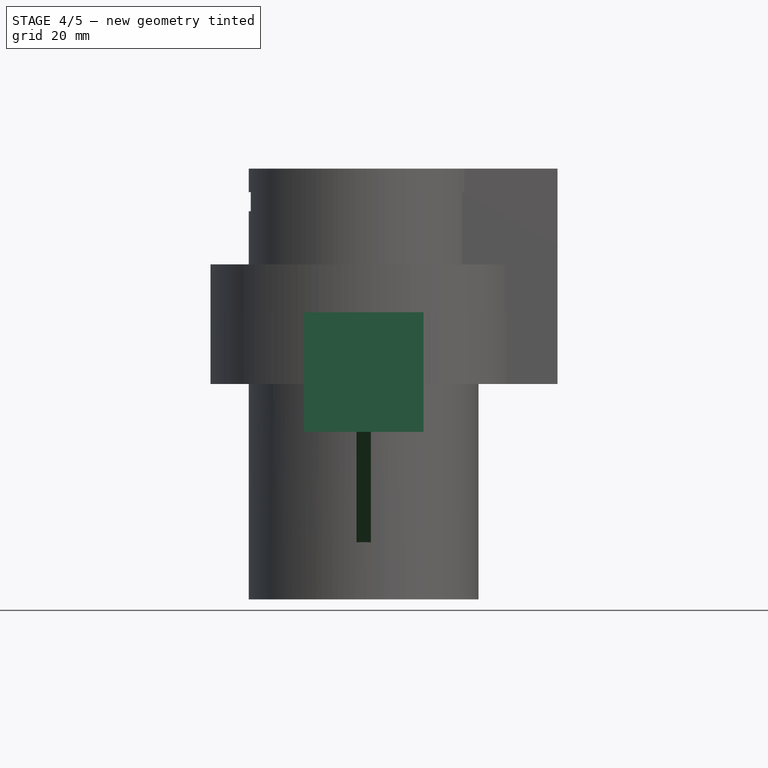
[diagram: stage 4 of 5 — front view after this stage's code; geometry added in this stage tinted green]
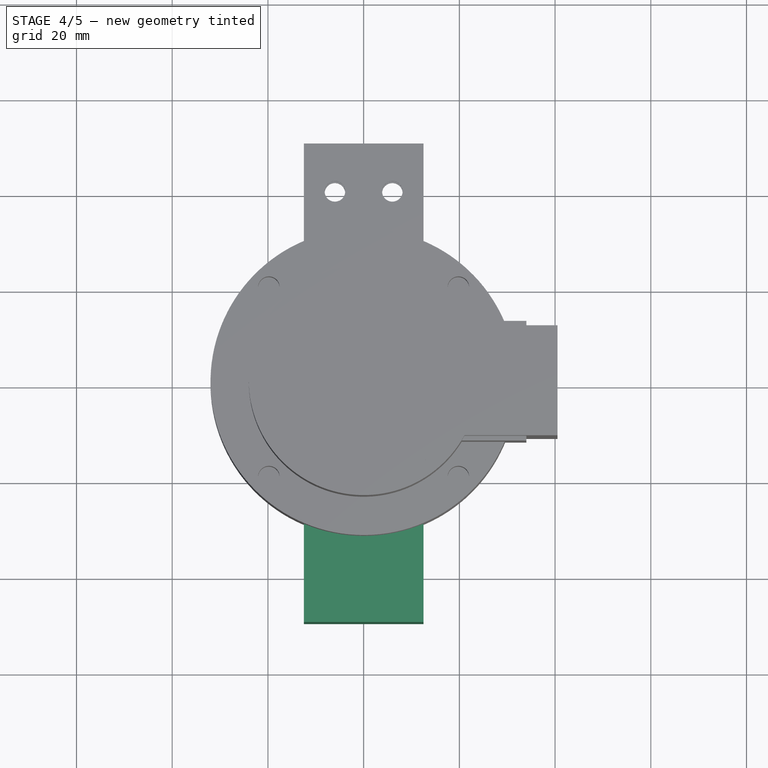
[diagram: stage 4 of 5 — top view after this stage's code; geometry added in this stage tinted green]
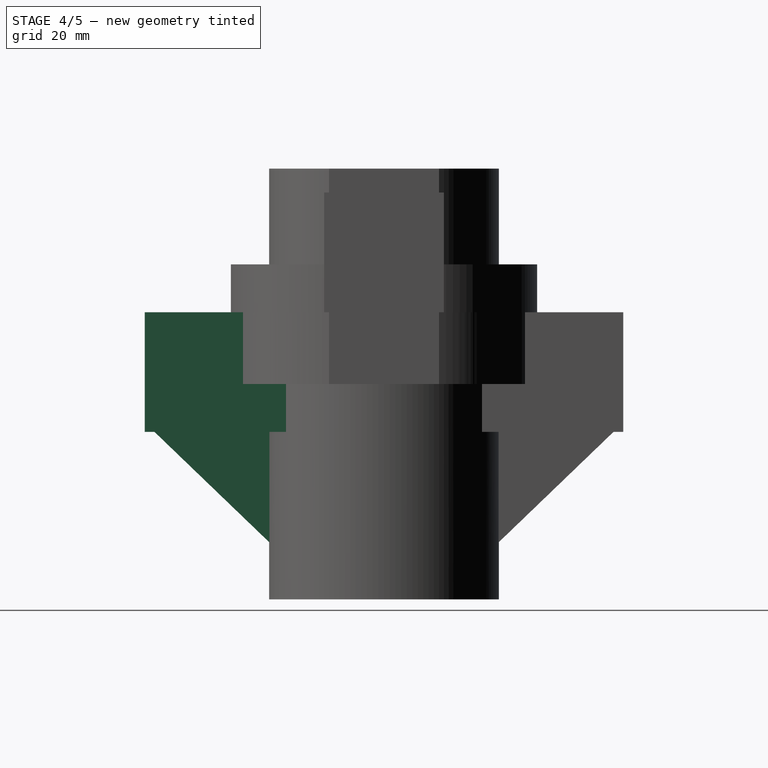
[diagram: stage 4 of 5 — right view after this stage's code; geometry added in this stage tinted green]
FEATURE [Sketcher::SketchObject] Sketch063
  FullyConstrained = true
  MapMode = 5
  Placement = pos=(0,0,0) rot=(1,0,0;1.5708rad)
  Support = -> [XZ_Plane002]
  sketch-geometry (1):
    g0: Circle CenterX=0 CenterY=15 CenterZ=0 NormalX=0 NormalY=0 NormalZ=1 AngleXU=0 Radius=2.25
  constraints (3):
    c: PointOnObject(g0,g-2)
    c: Diameter(g0) = 4.5
    c: DistanceY(g-1,g0) = 15
FEATURE [PartDesign::Pocket] Pocket049
  BaseFeature = -> Pocket048
  Length = 5
  Length2 = 100
  Profile = -> Sketch063
  Type = 1
FEATURE [Sketcher::SketchObject] Sketch064
  FullyConstrained = true
  MapMode = 5
  Placement = pos=(0,0,0) rot=(0.57735,0.57735,0.57735;2.0944rad)
  Support = -> [YZ_Plane002]
  sketch-geometry (1):
    g0: Circle CenterX=0 CenterY=15 CenterZ=0 NormalX=0 NormalY=0 NormalZ=1 AngleXU=0 Radius=2.25
  constraints (3):
    c: PointOnObject(g0,g-2)
    c: DistanceY(g-1,g0) = 15
    c: Diameter(g0) = 4.5
FEATURE [PartDesign::Pocket] Pocket050
  BaseFeature = -> Pocket049
  Length = 5
  Length2 = 100
  Profile = -> Sketch064
  Type = 1
FEATURE [PartDesign::Body] Body001  label="BottomL"
  Group = -> [Sketch004,Sketch005,Sketch006,Sketch008,Sketch009,Pad002,Pad003,Sketch036,Pad015,Sketch038,Sketch043,Pad016,Sketch047,Pad017,Pocket030,Pocket031,Pocket032,Pocket033,Sketch053,Hole,PolarPattern,Sketch056,Pocket041,Sketch057,Pocket042,Sketch058,Pocket043,Sketch059,Pocket044,Sketch060,Pocket045,Sketch065,Pocket051]
  Origin = -> Origin001
  Tip = -> Pocket051
FEATURE [Sketcher::SketchObject] Sketch070
  FullyConstrained = true
  MapMode = 5
  sketch-geometry (3):
    g0: LineSegment StartX=-6 StartY=-40 StartZ=0 EndX=6 EndY=-40 EndZ=0
    g1: Circle CenterX=-6 CenterY=-40 CenterZ=0 NormalX=0 NormalY=0 NormalZ=1 AngleXU=0 Radius=2.15
    g2: Circle CenterX=6 CenterY=-40 CenterZ=0 NormalX=0 NormalY=0 NormalZ=1 AngleXU=0 Radius=2.15
  constraints (7):
    c: Symmetric(g0,g0,g-2)
    c: Distance(g0) = 12
    c: Coincident(g1,g0)
    c: Coincident(g2,g0)
    c: Diameter(g1) = 4.3
    c: Diameter(g2) = 4.3
    c: DistanceY(g1,g-1) = 40
FEATURE [Sketcher::SketchObject] Sketch071
  FullyConstrained = true
  MapMode = 5
  Placement = pos=(0,0,-15) rot=(1,0,0;3.14159rad)
  sketch-geometry (2):
    g0: LineSegment StartX=0 StartY=0 StartZ=0 EndX=19.799 EndY=19.799 EndZ=0
    g1: Circle CenterX=19.799 CenterY=19.799 CenterZ=0 NormalX=0 NormalY=0 NormalZ=1 AngleXU=0 Radius=3
  constraints (5):
    c: Coincident(g0,g-1)
    c: Distance(g0) = 28
    c: Angle(g-1,g0) = 0.785398
    c: Coincident(g1,g0)
    c: Diameter(g1) = 6
FEATURE [Sketcher::SketchObject] Sketch084
  FullyConstrained = true
  MapMode = 5
  Placement = pos=(0,0,-3) rot=(0,0,1;0rad)
  sketch-geometry (4):
    g0: LineSegment StartX=-10 StartY=10 StartZ=0 EndX=30 EndY=10 EndZ=0
    g1: LineSegment StartX=30 StartY=10 StartZ=0 EndX=30 EndY=-10 EndZ=0
    g2: LineSegment StartX=30 StartY=-10 StartZ=0 EndX=-10 EndY=-10 EndZ=0
    g3: LineSegment StartX=-10 StartY=-10 StartZ=0 EndX=-10 EndY=10 EndZ=0
  constraints (11):
    c: Coincident(g0,g1)
    c: Coincident(g1,g2)
    c: Coincident(g2,g3)
    c: Coincident(g3,g0)
    c: Horizontal(g0)
    c: Horizontal(g2)
    c: Vertical(g1)
    c: Distance(g1) = 20
    c: Distance(g0) = 40
    c: Symmetric(g0,g2,g-1)
    c: DistanceX(g0,g-1) = 10
FEATURE [Sketcher::SketchObject] Sketch072
  FullyConstrained = true
  MapMode = 5
  sketch-geometry (1):
    g0: Circle CenterX=0 CenterY=0 CenterZ=0 NormalX=0 NormalY=0 NormalZ=1 AngleXU=0 Radius=13
  constraints (2):
    c: Coincident(g0,g-1)
    c: Diameter(g0) = 26
FEATURE [Sketcher::SketchObject] Sketch083
  FullyConstrained = true
  MapMode = 5
  Placement = pos=(0,0,-3) rot=(0,0,1;0rad)
  sketch-geometry (8):
    g0: LineSegment StartX=-17 StartY=1 StartZ=0 EndX=-10 EndY=1 EndZ=0
    g1: LineSegment StartX=-10 StartY=1 StartZ=0 EndX=-10 EndY=-1 EndZ=0
    g2: LineSegment StartX=-10 StartY=-1 StartZ=0 EndX=-17 EndY=-1 EndZ=0
    g3: LineSegment StartX=-17 StartY=-1 StartZ=0 EndX=-17 EndY=1 EndZ=0
    g4: LineSegment StartX=30 StartY=1 StartZ=0 EndX=37 EndY=1 EndZ=0
    g5: LineSegment StartX=37 StartY=1 StartZ=0 EndX=37 EndY=-1 EndZ=0
    g6: LineSegment StartX=37 StartY=-1 StartZ=0 EndX=30 EndY=-1 EndZ=0
    g7: LineSegment StartX=30 StartY=-1 StartZ=0 EndX=30 EndY=1 EndZ=0
  constraints (22):
    c: Coincident(g0,g1)
    c: Coincident(g1,g2)
    c: Coincident(g2,g3)
    c: Coincident(g3,g0)
    c: Horizontal(g0)
    c: Horizontal(g2)
    c: Vertical(g1)
    c: Distance(g1) = 2
    c: Distance(g0) = 7
    c: Symmetric(g0,g2,g-1)
    c: DistanceX(g0,g-1) = 10
    c: Coincident(g4,g5)
    c: Coincident(g5,g6)
    c: Coincident(g6,g7)
    c: Coincident(g7,g4)
    c: Horizontal(g4)
    c: Horizontal(g6)
    c: Vertical(g7)
    c: Distance(g7) = 2
    c: Distance(g4) = 7
    c: Symmetric(g4,g5,g-1)
    c: DistanceX(g-1,g4) = 30
FEATURE [Sketcher::SketchObject] Sketch082
  FullyConstrained = true
  MapMode = 5
  sketch-geometry (4):
    g0: LineSegment StartX=-17.5 StartY=10 StartZ=0 EndX=37.5 EndY=10 EndZ=0
    g1: LineSegment StartX=37.5 StartY=10 StartZ=0 EndX=37.5 EndY=-10 EndZ=0
    g2: LineSegment StartX=37.5 StartY=-10 StartZ=0 EndX=-17.5 EndY=-10 EndZ=0
    g3: LineSegment StartX=-17.5 StartY=-10 StartZ=0 EndX=-17.5 EndY=10 EndZ=0
  constraints (11):
    c: Coincident(g0,g1)
    c: Coincident(g1,g2)
    c: Coincident(g2,g3)
    c: Coincident(g3,g0)
    c: Horizontal(g0)
    c: Horizontal(g2)
    c: Vertical(g1)
    c: Distance(g1) = 20
    c: Distance(g0) = 55
    c: Symmetric(g0,g2,g-1)
    c: DistanceX(g0,g-1) = 17.5
FEATURE [Sketcher::SketchObject] Sketch075
  FullyConstrained = true
  MapMode = 5
  Support = -> [XY_Plane004]
  sketch-geometry (1):
    g0: Circle CenterX=0 CenterY=0 CenterZ=0 NormalX=0 NormalY=0 NormalZ=1 AngleXU=0 Radius=32
  constraints (2):
    c: Coincident(g0,g-1)
    c: Diameter(g0) = 64
FEATURE [Sketcher::SketchObject] Sketch073
  FullyConstrained = true
  MapMode = 5
  Placement = pos=(0,0,0) rot=(0.57735,0.57735,0.57735;2.0944rad)
  Support = -> [YZ_Plane004]
  sketch-geometry (3):
    g0: LineSegment StartX=-49 StartY=-24 StartZ=0 EndX=-23 EndY=-24 EndZ=0
    g1: LineSegment StartX=-23 StartY=-24 StartZ=0 EndX=-23 EndY=-49 EndZ=0
    g2: LineSegment StartX=-49 StartY=-24 StartZ=0 EndX=-23 EndY=-49 EndZ=0
  constraints (9):
    c: Horizontal(g0)
    c: Coincident(g1,g0)
    c: Vertical(g1)
    c: Coincident(g2,g0)
    c: Coincident(g2,g1)
    c: Distance(g0) = 26
    c: Distance(g1) = 25
    c: DistanceY(g0,g-1) = 24
    c: DistanceX(g0,g-1) = 23
FEATURE [Sketcher::SketchObject] Sketch079
  FullyConstrained = true
  MapMode = 5
  sketch-geometry (4):
    g0: LineSegment StartX=-12.5 StartY=-10 StartZ=0 EndX=12.5 EndY=-10 EndZ=0
    g1: LineSegment StartX=12.5 StartY=-10 StartZ=0 EndX=12.5 EndY=-50 EndZ=0
    g2: LineSegment StartX=12.5 StartY=-50 StartZ=0 EndX=-12.5 EndY=-50 EndZ=0
    g3: LineSegment StartX=-12.5 StartY=-50 StartZ=0 EndX=-12.5 EndY=-10 EndZ=0
  constraints (11):
    c: Coincident(g0,g1)
    c: Coincident(g1,g2)
    c: Coincident(g2,g3)
    c: Coincident(g3,g0)
    c: Horizontal(g0)
    c: Vertical(g1)
    c: Vertical(g3)
    c: Distance(g0) = 25
    c: Distance(g1) = 40
    c: Symmetric(g2,g1,g-2)
    c: DistanceY(g0,g-1) = 10
FEATURE [Sketcher::SketchObject] Sketch081
  FullyConstrained = true
  MapMode = 5
  Support = -> [XY_Plane004]
  sketch-geometry (4):
    g0: LineSegment StartX=-20.5 StartY=11.5 StartZ=0 EndX=40.5 EndY=11.5 EndZ=0
    g1: LineSegment StartX=40.5 StartY=11.5 StartZ=0 EndX=40.5 EndY=-11.5 EndZ=0
    g2: LineSegment StartX=40.5 StartY=-11.5 StartZ=0 EndX=-20.5 EndY=-11.5 EndZ=0
    g3: LineSegment StartX=-20.5 StartY=-11.5 StartZ=0 EndX=-20.5 EndY=11.5 EndZ=0
  constraints (11):
    c: Coincident(g0,g1)
    c: Coincident(g1,g2)
    c: Coincident(g2,g3)
    c: Coincident(g3,g0)
    c: Horizontal(g0)
    c: Horizontal(g2)
    c: Vertical(g1)
    c: Distance(g0) = 61
    c: Distance(g1) = 23
    c: Symmetric(g0,g2,g-1)
    c: DistanceX(g0,g-1) = 20.5
FEATURE [Sketcher::SketchObject] Sketch077
  FullyConstrained = true
  MapMode = 5
  sketch-geometry (1):
    g0: Circle CenterX=0 CenterY=0 CenterZ=0 NormalX=0 NormalY=0 NormalZ=1 AngleXU=0 Radius=24
  constraints (2):
    c: Coincident(g0,g-1)
    c: Diameter(g0) = 48
FEATURE [PartDesign::Pad] Pad019
  Direction = (1,1,1)
  Length = 60
  Length2 = 100
  Profile = -> Sketch077
  Reversed = true
  Type = 0
FEATURE [PartDesign::Pad] Pad020
  BaseFeature = -> Pad019
  Direction = (1,1,1)
  Length = 15
  Length2 = 100
  Profile = -> Sketch081
  Reversed = true
  Type = 0
FEATURE [PartDesign::Pad] Pad021
  BaseFeature = -> Pad020
  Direction = (1,1,1)
  Length = 25
  Length2 = 100
  Profile = -> Sketch079
  Reversed = true
  Type = 0
FEATURE [PartDesign::Pad] Pad022
  BaseFeature = -> Pad021
  Direction = (1,1,1)
  Length = 3
  Length2 = 100
  Midplane = true
  Profile = -> Sketch073
  Type = 0
FEATURE [PartDesign::Pad] Pad023
  BaseFeature = -> Pad022
  Direction = (1,1,1)
  Length = 15
  Length2 = 100
  Profile = -> Sketch075
  Reversed = true
  Type = 0
FEATURE [PartDesign::Pocket] Pocket059
  BaseFeature = -> Pad023
  Length = 3
  Length2 = 100
  Profile = -> Sketch082
  Type = 0
FEATURE [PartDesign::Pocket] Pocket058
  BaseFeature = -> Pocket059
  Length = 3
  Length2 = 100
  Profile = -> Sketch083
  Type = 0
FEATURE [PartDesign::Body] Body004  label="BottomR"
  Group = -> [Sketch081,Sketch082,Sketch084,Sketch083,Sketch077,Pad019,Pad020,Sketch079,Pad021,Sketch072,Sketch073,Pad022,Sketch075,Pad023,Pocket059,Pocket058,Pocket056,Pocket057,Sketch071,Hole001,PolarPattern002,Sketch070,Pocket061,Sketch078,Pocket065,Sketch085,Pocket063,Sketch076,Pocket064,Sketch080,Pocket060,Sketch074,Pocket062]
  Origin = -> Origin004
  Tip = -> Pocket062
FEATURE [Sketcher::SketchObject] Sketch086
  ExternalGeometry = -> [Pocket050]
  FullyConstrained = true
  MapMode = 5
  Placement = pos=(0,0,0) rot=(1,0,0;3.14159rad)
  Support = -> [Pocket050]
  sketch-geometry (3):
    g0: LineSegment StartX=27 StartY=6 StartZ=0 EndX=27 EndY=-6 EndZ=0
    g1: Circle CenterX=27 CenterY=6 CenterZ=0 NormalX=0 NormalY=0 NormalZ=1 AngleXU=0 Radius=2.15
    g2: Circle CenterX=27 CenterY=-6 CenterZ=0 NormalX=0 NormalY=0 NormalZ=1 AngleXU=0 Radius=2.15
  constraints (7):
    c: Symmetric(g0,g0,g-1)
    c: Distance(g0) = 12
    c: DistanceX(g0,g-3) = 7
    c: Coincident(g1,g0)
    c: Coincident(g2,g0)
    c: Diameter(g1) = 4.3
    c: Diameter(g2) = 4.3
FEATURE [PartDesign::Pocket] Pocket066
  BaseFeature = -> Pocket050
  Length = 5
  Length2 = 100
  Profile = -> Sketch086
  Refine = true
  Type = 1
FEATURE [PartDesign::Body] Body002  label="BodyStator"
  Group = -> [Sketch027,Pad011,Sketch029,Pad012,Sketch031,Sketch061,Pocket046,Sketch062,Pocket047,Pocket048,Sketch063,Pocket049,Sketch064,Pocket050,Sketch086,Pocket066]
  Origin = -> Origin002
  Tip = -> Pocket066
FEATURE [PartDesign::CoordinateSystem] LCS_0
  AttacherType = Attacher::AttachEngine3D
  MapMode = 2
  Support = -> [X_Axis005]
FEATURE [PartDesign::CoordinateSystem] LCS_0001
  AttacherType = Attacher::AttachEngine3D
  MapMode = 2
  Support = -> [X_Axis006]
FEATURE [PartDesign::CoordinateSystem] LCS_0002
  AttacherType = Attacher::AttachEngine3D
  MapMode = 2
  Support = -> [X_Axis007]
FEATURE [App::Part] SteeringKnuckleBottomR
  Group = -> [LCS_0002,Body004]
  Origin = -> Origin007
FEATURE [PartDesign::CoordinateSystem] LCS_0003
  AttacherType = Attacher::AttachEngine3D
  MapMode = 2
  Support = -> [X_Axis008]
FEATURE [App::Part] SteeringKnuckleStator
  Group = -> [LCS_0003,Body002]
  Origin = -> Origin008
FEATURE [PartDesign::CoordinateSystem] LCS_1
  AttacherType = Attacher::AttachEngine3D
  MapMode = 5
  Placement = pos=(0,0,0) rot=(1,0,0;3.14159rad)
  Support = -> [PolarPattern001]
FEATURE [App::Part] SteeringKnuckleTop
  Group = -> [LCS_0,Body,LCS_1]
  Origin = -> Origin005
FEATURE [PartDesign::CoordinateSystem] LCS_2
  AttacherType = Attacher::AttachEngine3D
  MapMode = 5
  Placement = pos=(0,0,-3) rot=(0,1,0;3.14159rad)
  Support = -> [Pocket051]
FEATURE [PartDesign::CoordinateSystem] LCS_3
  AttacherType = Attacher::AttachEngine3D
  MapMode = 5
  Placement = pos=(0,0,0) rot=(0,1,0;3.14159rad)
  Support = -> [Pocket051]
FEATURE [PartDesign::CoordinateSystem] LCS_Screw01
  AttacherType = Attacher::AttachEngine3D
  MapMode = 45
  Placement = pos=(-19.799,19.799,-3) rot=(0,0,1;0rad)
  Support = -> [Pocket051]
FEATURE [PartDesign::CoordinateSystem] LCS_Screw02
  AttacherType = Attacher::AttachEngine3D
  MapMode = 45
  Placement = pos=(-19.799,-19.799,-3) rot=(0,0,1;0rad)
  Support = -> [Pocket051]
FEATURE [PartDesign::CoordinateSystem] LCS_Screw03
  AttacherType = Attacher::AttachEngine3D
  MapMode = 45
  Placement = pos=(19.799,-19.799,-3) rot=(0,0,1;0rad)
  Support = -> [Pocket051]
FEATURE [PartDesign::CoordinateSystem] LCS_Screw04
  AttacherType = Attacher::AttachEngine3D
  MapMode = 45
  Placement = pos=(19.799,19.799,-3) rot=(0,0,1;0rad)
  Support = -> [Pocket051]
FEATURE [PartDesign::CoordinateSystem] LCS_BallBearing
  AttacherType = Attacher::AttachEngine3D
  MapMode = 45
  Placement = pos=(0,-7e-16,-54) rot=(0,1,0;3.14159rad)
  Support = -> [Pocket051]
FEATURE [PartDesign::CoordinateSystem] LCS_SurfaceBearing
  AttacherType = Attacher::AttachEngine3D
  MapMode = 45
  Placement = pos=(2.13e-14,2e-16,-56) rot=(0,1,0;3.14159rad)
  Support = -> [Pocket051]
FEATURE [App::Part] SteeringKnuckleBottomL
  Group = -> [LCS_0001,Body001,LCS_2,LCS_3,LCS_Screw01,LCS_Screw02,LCS_Screw03,LCS_Screw04,LCS_BallBearing,LCS_SurfaceBearing]
  Origin = -> Origin006
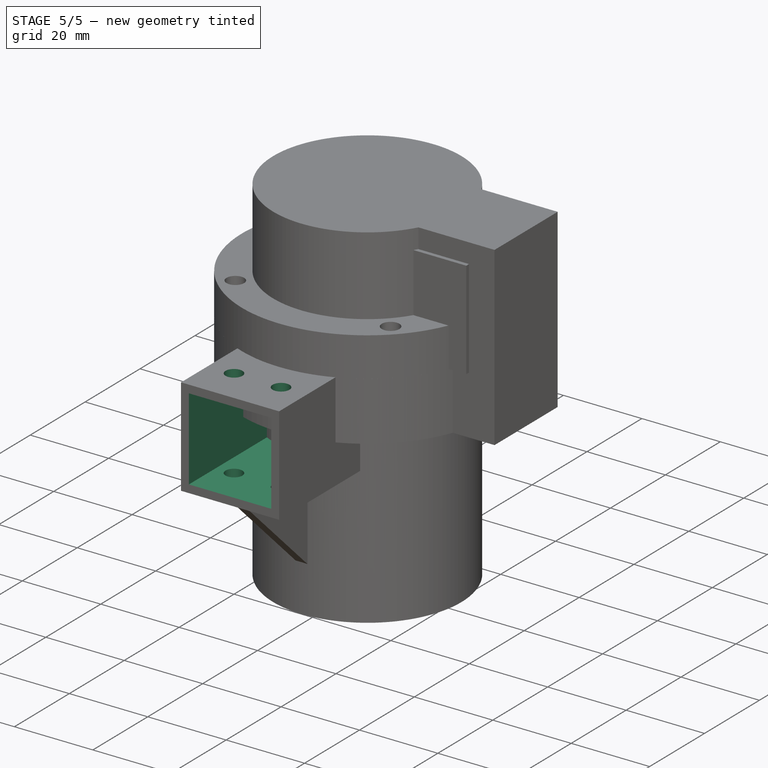
[diagram: stage 5 of 5 — iso view after this stage's code; geometry added in this stage tinted green]
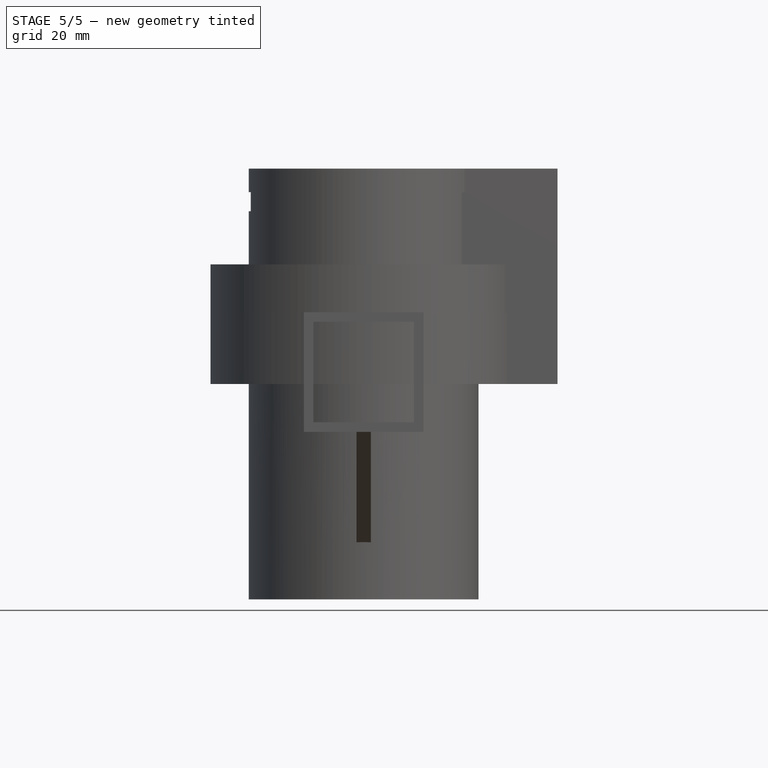
[diagram: stage 5 of 5 — front view after this stage's code; geometry added in this stage tinted green]
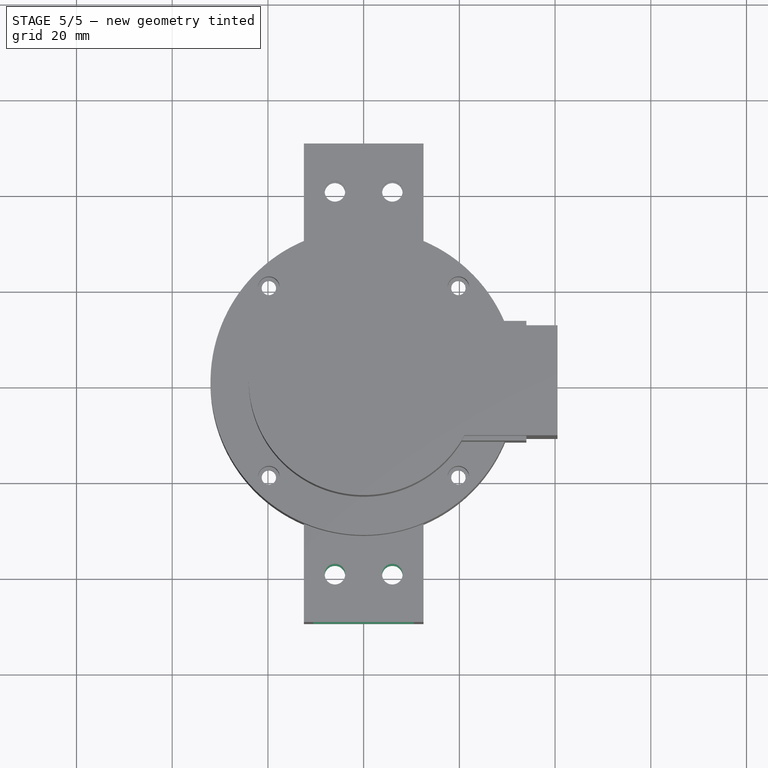
[diagram: stage 5 of 5 — top view after this stage's code; geometry added in this stage tinted green]
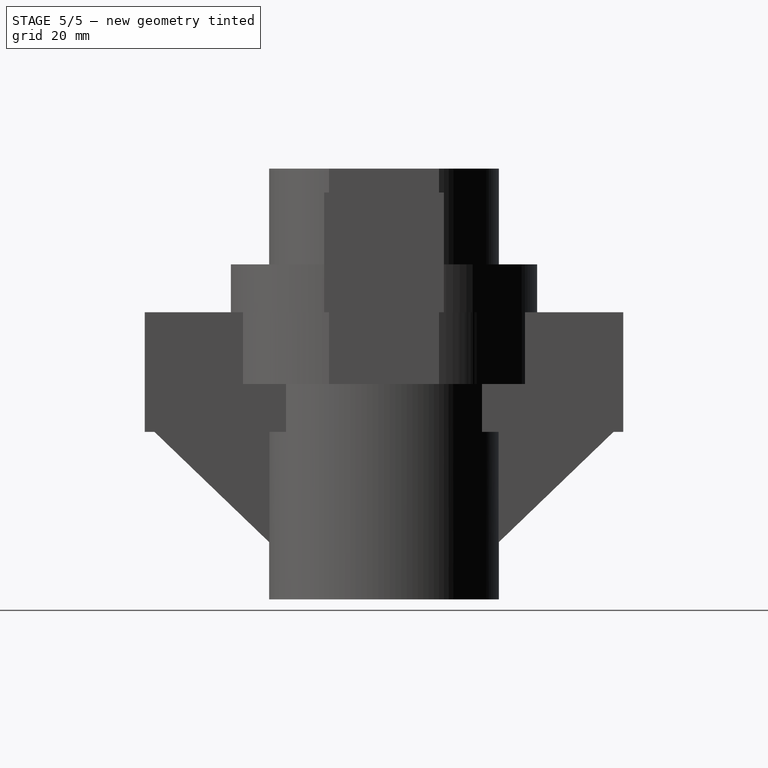
[diagram: stage 5 of 5 — right view after this stage's code; geometry added in this stage tinted green]
FEATURE [PartDesign::Pocket] Pocket056
  BaseFeature = -> Pocket058
  Length = 48
  Length2 = 100
  Profile = -> Sketch072
  Type = 0
FEATURE [PartDesign::Pocket] Pocket057
  BaseFeature = -> Pocket056
  Length = 9
  Length2 = 100
  Profile = -> Sketch084
  Type = 0
FEATURE [PartDesign::Hole] Hole001
  BaseFeature = -> Pocket057
  Depth = 25
  DepthType = 0
  Diameter = 3
  DrillForDepth = false
  DrillPoint = 1
  DrillPointAngle = 118
  HoleCutCountersinkAngle = 90
  HoleCutCustomValues = false
  HoleCutDepth = 12
  HoleCutDiameter = 6
  HoleCutType = 1
  ModelActualThread = false
  Profile = -> Sketch071
  Tapered = false
  TaperedAngle = 90
  ThreadAngle = 0
  ThreadClass = 0
  ThreadCutOffInner = 0
  ThreadCutOffOuter = 0
  ThreadDirection = 0
  ThreadFit = 0
  ThreadPitch = 0
  ThreadSize = 0
  ThreadType = 0
  Threaded = false
FEATURE [PartDesign::PolarPattern] PolarPattern002
  Angle = 360
  Axis = -> Z_Axis004
  BaseFeature = -> Hole001
  Occurrences = 4
  Originals = -> [Hole001]
FEATURE [PartDesign::Pocket] Pocket061
  BaseFeature = -> PolarPattern002
  Length = 5
  Length2 = 100
  Profile = -> Sketch070
  Type = 1
FEATURE [Sketcher::SketchObject] Sketch078
  FullyConstrained = true
  MapMode = 5
  Placement = pos=(0,-50,0) rot=(1,0,0;1.5708rad)
  Support = -> [Pocket061]
  sketch-geometry (4):
    g0: LineSegment StartX=-10.5 StartY=-2 StartZ=0 EndX=10.5 EndY=-2 EndZ=0
    g1: LineSegment StartX=10.5 StartY=-2 StartZ=0 EndX=10.5 EndY=-23 EndZ=0
    g2: LineSegment StartX=10.5 StartY=-23 StartZ=0 EndX=-10.5 EndY=-23 EndZ=0
    g3: LineSegment StartX=-10.5 StartY=-23 StartZ=0 EndX=-10.5 EndY=-2 EndZ=0
  constraints (11):
    c: Coincident(g0,g1)
    c: Coincident(g1,g2)
    c: Coincident(g2,g3)
    c: Coincident(g3,g0)
    c: Horizontal(g2)
    c: Vertical(g1)
    c: Vertical(g3)
    c: Symmetric(g0,g0,g-2)
    c: Equal(g0,g1)
    c: Distance(g0) = 21
    c: DistanceY(g0,g-1) = 2
FEATURE [PartDesign::Pocket] Pocket065
  BaseFeature = -> Pocket061
  Length = 36
  Length2 = 100
  Profile = -> Sketch078
  Type = 0
FEATURE [Sketcher::SketchObject] Sketch085
  FullyConstrained = true
  MapMode = 5
  Placement = pos=(0,0,-48) rot=(0,0,1;0rad)
  Support = -> [Pocket065]
  sketch-geometry (1):
    g0: Circle CenterX=0 CenterY=0 CenterZ=0 NormalX=0 NormalY=0 NormalZ=1 AngleXU=0 Radius=9.75
  constraints (2):
    c: Coincident(g0,g-1)
    c: Diameter(g0) = 19.5
FEATURE [PartDesign::Pocket] Pocket063
  BaseFeature = -> Pocket065
  Length = 6
  Length2 = 100
  Profile = -> Sketch085
  Type = 0
FEATURE [Sketcher::SketchObject] Sketch076
  FullyConstrained = true
  MapMode = 5
  Placement = pos=(0,0,-54) rot=(0,0,1;0rad)
  Support = -> [Pocket063]
  sketch-geometry (1):
    g0: Circle CenterX=0 CenterY=0 CenterZ=0 NormalX=0 NormalY=0 NormalZ=1 AngleXU=0 Radius=4.5
  constraints (2):
    c: Coincident(g0,g-1)
    c: Diameter(g0) = 9
FEATURE [PartDesign::Pocket] Pocket064
  BaseFeature = -> Pocket063
  Length = 5
  Length2 = 100
  Profile = -> Sketch076
  Type = 1
FEATURE [Sketcher::SketchObject] Sketch080
  FullyConstrained = true
  MapMode = 5
  Placement = pos=(0,0,-60) rot=(1,0,0;3.14159rad)
  Support = -> [Pocket064]
  sketch-geometry (1):
    g0: Circle CenterX=0 CenterY=0 CenterZ=0 NormalX=0 NormalY=0 NormalZ=1 AngleXU=0 Radius=22
  constraints (2):
    c: Coincident(g0,g-1)
    c: Diameter(g0) = 44
FEATURE [PartDesign::Pocket] Pocket060
  BaseFeature = -> Pocket064
  Length = 2
  Length2 = 100
  Profile = -> Sketch080
  Type = 0
FEATURE [Sketcher::SketchObject] Sketch074
  FullyConstrained = true
  MapMode = 5
  Placement = pos=(0,0,-58) rot=(1,0,0;3.14159rad)
  Support = -> [Pocket060]
  sketch-geometry (1):
    g0: Circle CenterX=0 CenterY=0 CenterZ=0 NormalX=0 NormalY=0 NormalZ=1 AngleXU=0 Radius=6.25
  constraints (2):
    c: Coincident(g0,g-1)
    c: Diameter(g0) = 12.5
FEATURE [PartDesign::Pocket] Pocket062
  BaseFeature = -> Pocket060
  Length = 2
  Length2 = 100
  Profile = -> Sketch074
  Type = 0
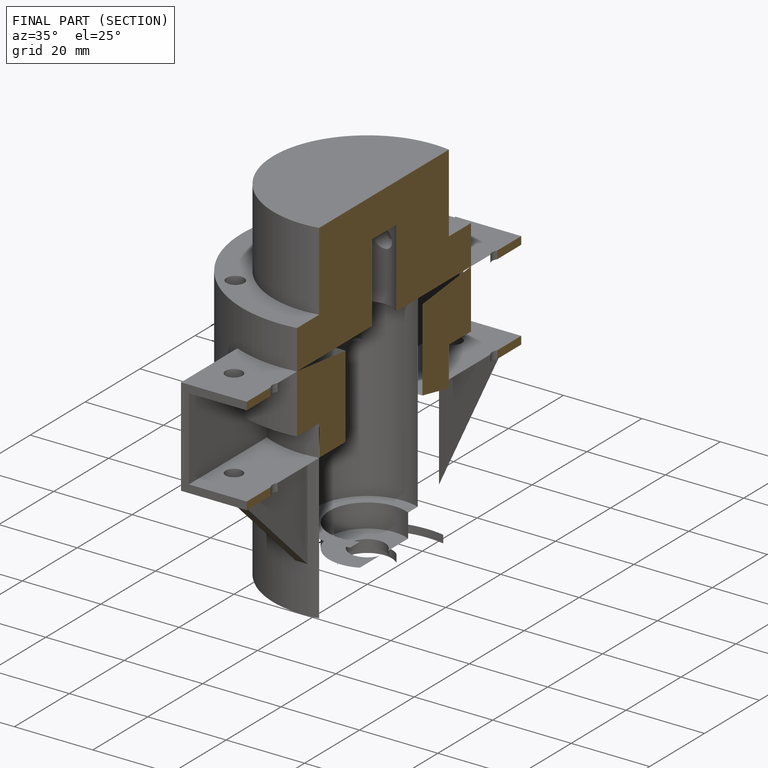
[diagram: finished part — half-section view (interior)]
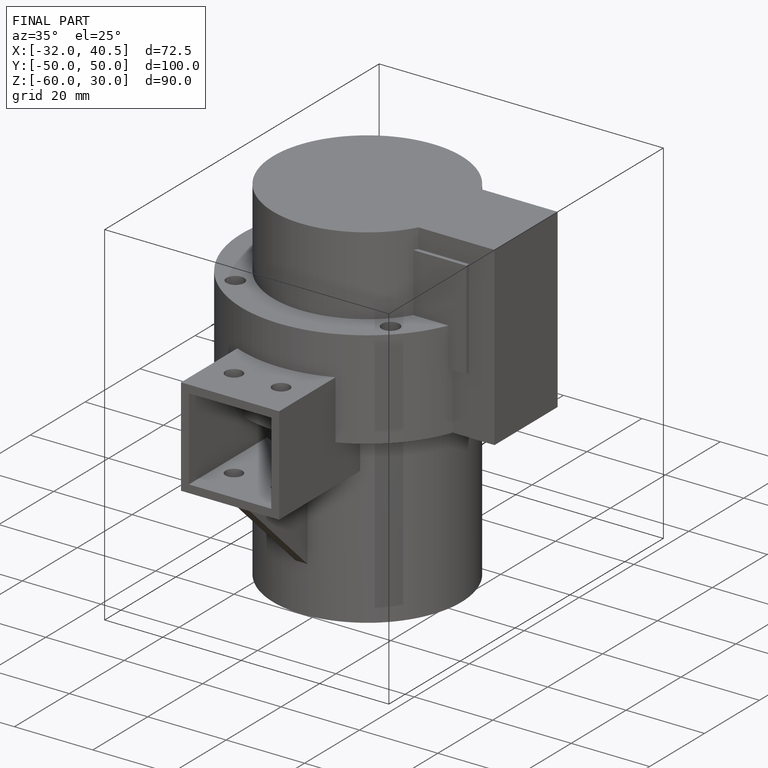
[diagram: finished part — iso view with bounding-box wireframe]
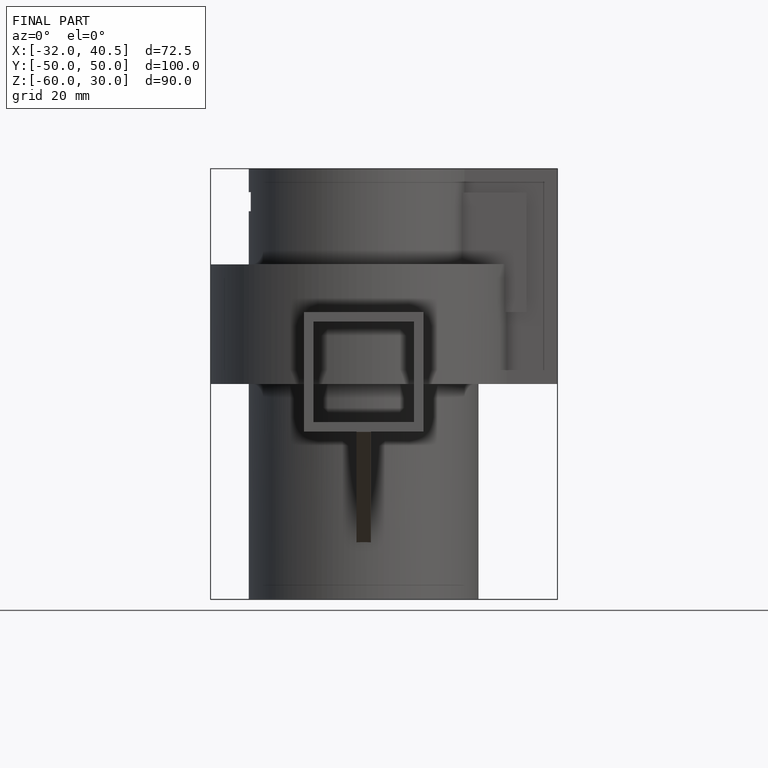
[diagram: finished part — front view with bounding-box wireframe]
